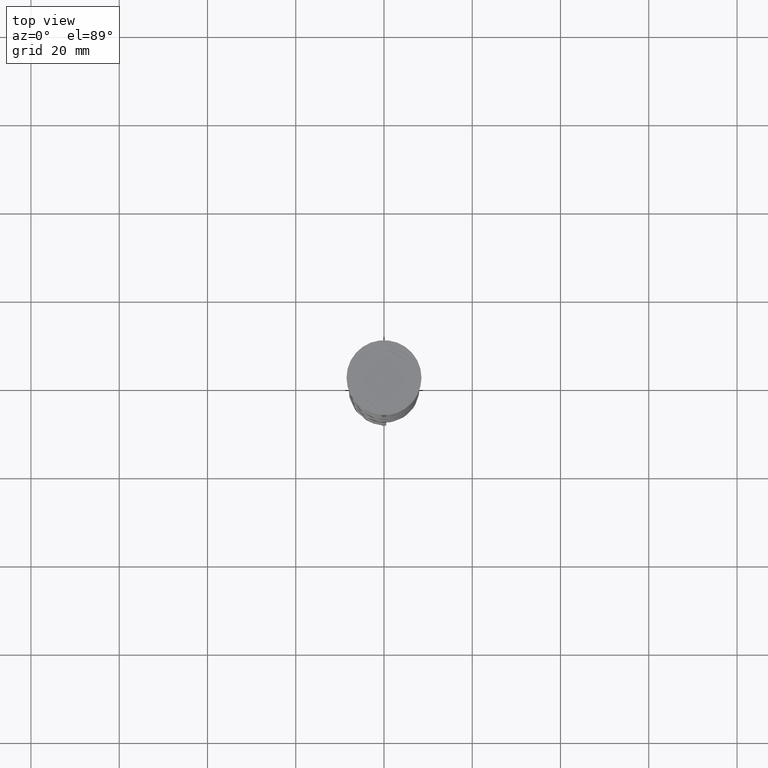
[diagram: clean part render]
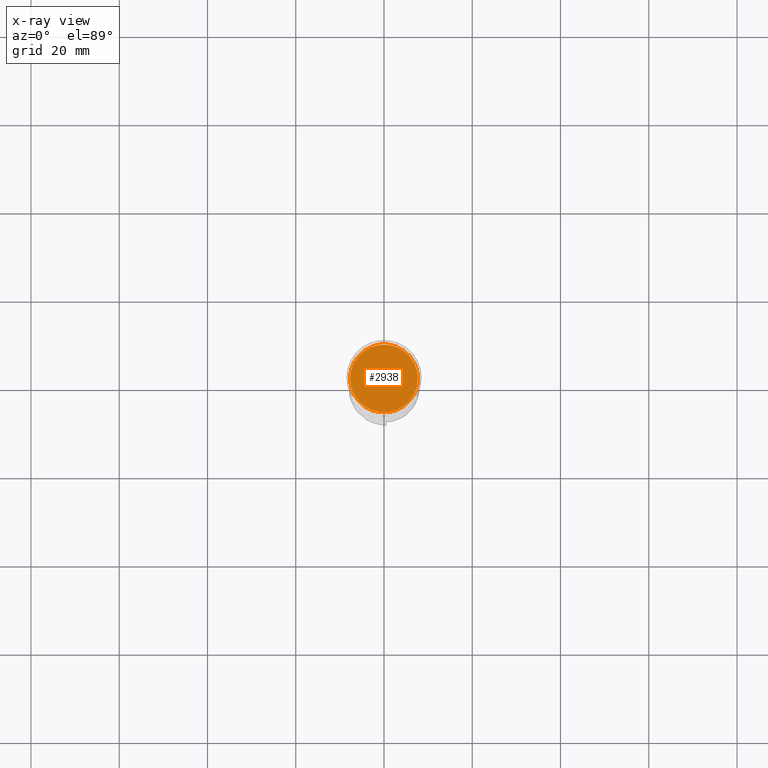
[diagram: x-ray — body ghosted, one internal face saturated and labeled with its STEP entity id]
A machine part, top view, then the same camera in x-ray: the body is ghosted and one INTERNAL B-rep face — a face not visible from any outside direction — is saturated and labeled: STEP entity #2938.
In plain terms, the highlighted planar face has unit normal (0, 0, -1).
Its self-contained STEP definition (entity closure, byte-faithful):
#293 = CARTESIAN_POINT ( 'NONE',  ( 0.000000000000000000, 0.000000000000000000, -12.00000000000000000 ) ) ;
#425 = CIRCLE ( 'NONE', #2292, 7.700000000000001954 ) ;
#674 = CARTESIAN_POINT ( 'NONE',  ( 0.000000000000000000, 0.000000000000000000, -12.00000000000000000 ) ) ;
#909 = CARTESIAN_POINT ( 'NONE',  ( 7.700000000000001954, 9.613477373306725302E-16, -12.00000000000000000 ) ) ;
#944 = DIRECTION ( 'NONE',  ( -1.000000000000000000, 0.000000000000000000, 0.000000000000000000 ) ) ;
#965 = VERTEX_POINT ( 'NONE', #909 ) ;
#1073 = CARTESIAN_POINT ( 'NONE',  ( -7.700000000000001954, 0.000000000000000000, -12.00000000000000000 ) ) ;
#1108 = FACE_OUTER_BOUND ( 'NONE', #3389, .T. ) ;
#1194 = DIRECTION ( 'NONE',  ( -0.000000000000000000, -0.000000000000000000, 1.000000000000000000 ) ) ;
#1284 = DIRECTION ( 'NONE',  ( -0.000000000000000000, -0.000000000000000000, 1.000000000000000000 ) ) ;
#1615 = EDGE_CURVE ( 'NONE', #2718, #965, #425, .T. ) ;
#1699 = AXIS2_PLACEMENT_3D ( 'NONE', #674, #1284, #944 ) ;
#1788 = ORIENTED_EDGE ( 'NONE', *, *, #1615, .T. ) ;
#2101 = DIRECTION ( 'NONE',  ( -1.000000000000000000, 0.000000000000000000, 0.000000000000000000 ) ) ;
#2249 = DIRECTION ( 'NONE',  ( 0.000000000000000000, 0.000000000000000000, -1.000000000000000000 ) ) ;
#2257 = EDGE_CURVE ( 'NONE', #965, #2718, #3334, .T. ) ;
#2292 = AXIS2_PLACEMENT_3D ( 'NONE', #293, #1194, #2101 ) ;
#2519 = ORIENTED_EDGE ( 'NONE', *, *, #2257, .T. ) ;
#2585 = PLANE ( 'NONE',  #3645 ) ;
#2718 = VERTEX_POINT ( 'NONE', #1073 ) ;
#2822 = CARTESIAN_POINT ( 'NONE',  ( 0.000000000000000000, 0.000000000000000000, -12.00000000000000000 ) ) ;
#2938 = ADVANCED_FACE ( 'NONE', ( #1108 ), #2585, .F. ) ;
#3334 = CIRCLE ( 'NONE', #1699, 7.700000000000001954 ) ;
#3389 = EDGE_LOOP ( 'NONE', ( #1788, #2519 ) ) ;
#3645 = AXIS2_PLACEMENT_3D ( 'NONE', #2822, #2249, #3733 ) ;
#3733 = DIRECTION ( 'NONE',  ( -1.000000000000000000, 0.000000000000000000, -0.000000000000000000 ) ) ;